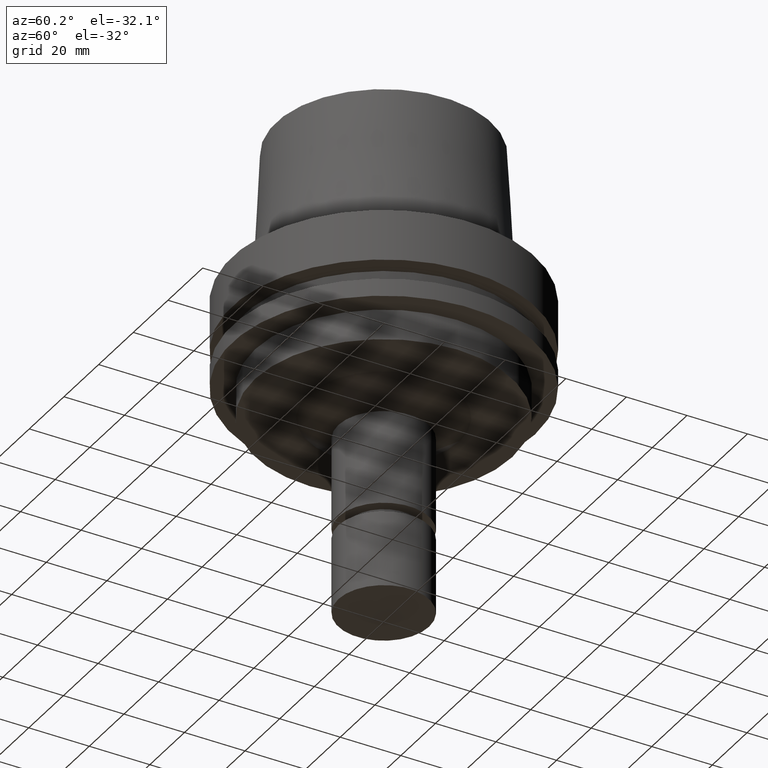
[diagram: clean part render]
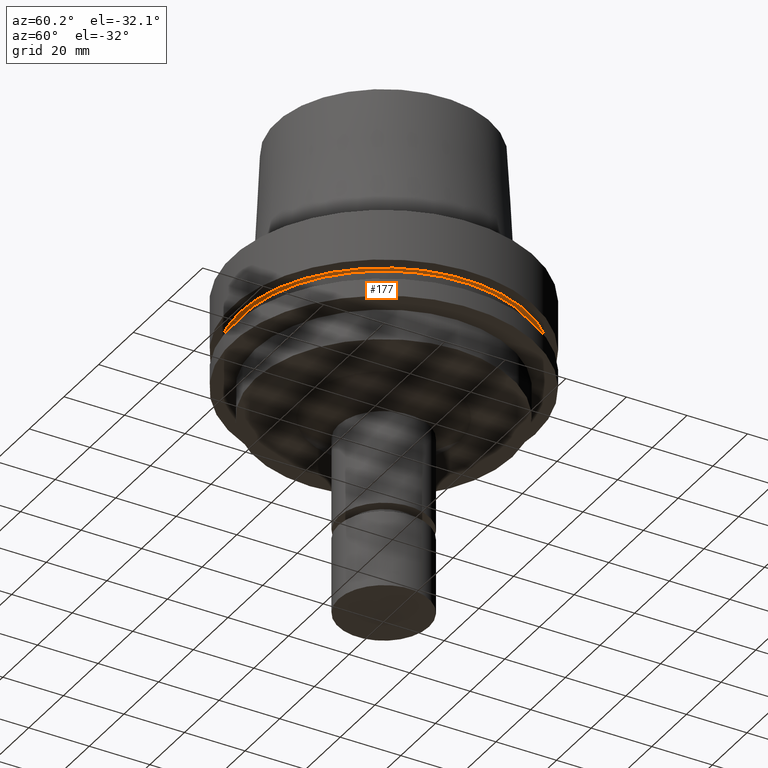
[diagram: same view with one face highlighted and labeled with its STEP entity id]
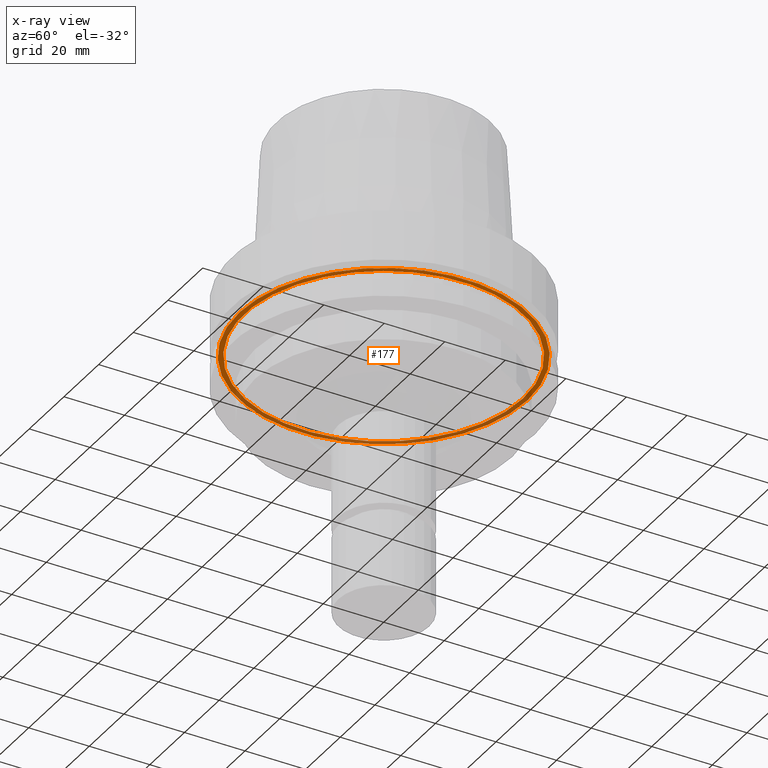
[diagram: x-ray of the same camera — body ghosted, the highlighted face saturated]
A machine part, auxiliary view. The second image highlights one B-rep face of the part: STEP entity #177.
The next image is the same camera in x-ray: the body ghosted, the highlighted face saturated — about 36% of this face is hidden behind the body in this view.
In plain terms, the highlighted planar face has unit normal (0, 0, -1).
Its self-contained STEP definition (entity closure, byte-faithful):
#177=ADVANCED_FACE('Unnamed[1]',(#370,#371),#372,.T.);
#187=EDGE_CURVE('Unnamed[1]',#385,#385,#386,.T.);
#193=EDGE_CURVE('Unnamed[1]',#394,#394,#395,.T.);
#370=FACE_BOUND('',#606,.T.);
#371=FACE_OUTER_BOUND('',#607,.T.);
#372=PLANE('',#608);
#385=VERTEX_POINT('',#624);
#386=CIRCLE('',#625,47.62259526);
#394=VERTEX_POINT('',#636);
#395=CIRCLE('',#637,46.0);
#606=EDGE_LOOP('',(#821));
#607=EDGE_LOOP('',(#822));
#608=AXIS2_PLACEMENT_3D('',#823,#824,#825);
#624=CARTESIAN_POINT('',(1.10983616172729E-015,47.62259526,-18.125));
#625=AXIS2_PLACEMENT_3D('',#836,#837,#838);
#636=CARTESIAN_POINT('',(1.10983616172729E-015,46.0,-18.125));
#637=AXIS2_PLACEMENT_3D('',#845,#846,#847);
#821=ORIENTED_EDGE('',*,*,#193,.F.);
#822=ORIENTED_EDGE('',*,*,#187,.T.);
#823=CARTESIAN_POINT('',(1.10983616172729E-015,46.81129763,-18.125));
#824=DIRECTION('',(6.12323399573677E-017,1.22464679914735E-016,-1.0));
#825=DIRECTION('',(-1.23259516440783E-032,1.0,1.22464679914735E-016));
#836=CARTESIAN_POINT('',(1.10983616172729E-015,2.21967232345458E-015,-18.125));
#837=DIRECTION('',(6.12323399573676E-017,1.22464679914735E-016,-1.0));
#838=DIRECTION('',(-1.23259516440783E-032,1.0,1.22464679914735E-016));
#845=CARTESIAN_POINT('',(1.10983616172729E-015,2.21967232345458E-015,-18.125));
#846=DIRECTION('',(6.12323399573677E-017,1.22464679914735E-016,-1.0));
#847=DIRECTION('',(-1.23259516440783E-032,1.0,1.22464679914735E-016));